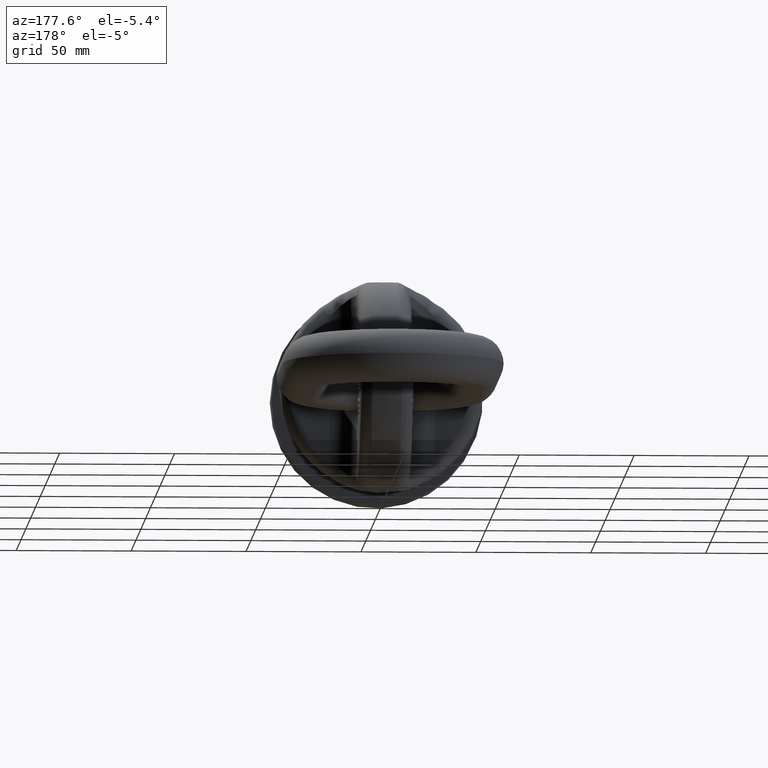
[diagram: clean part render]
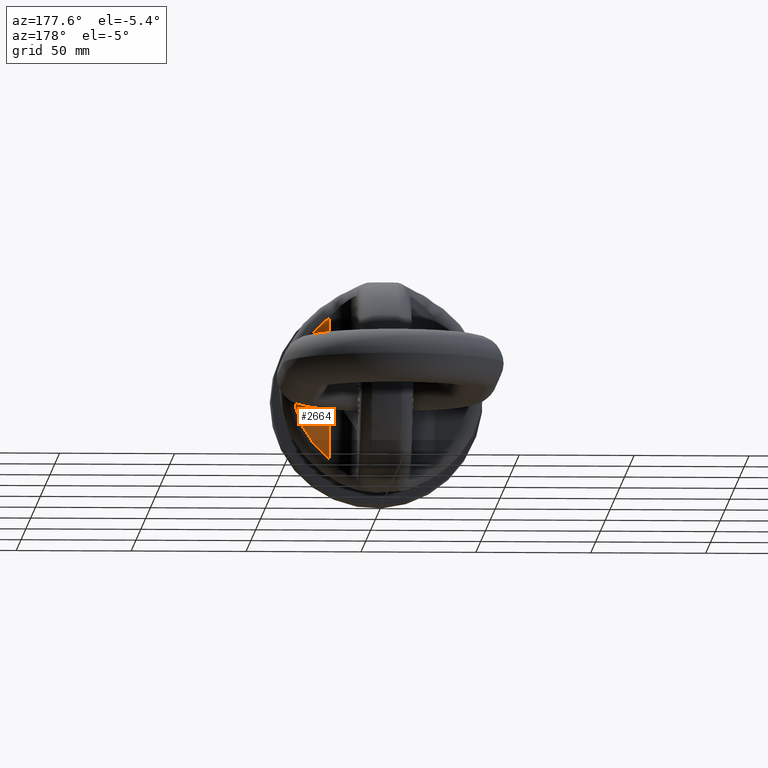
[diagram: same view with one face highlighted and labeled with its STEP entity id]
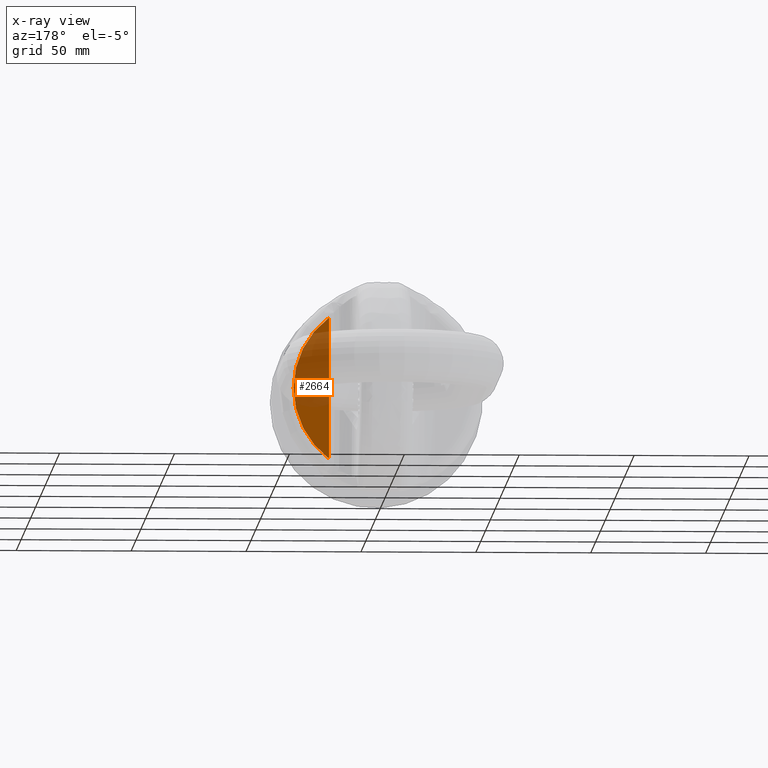
[diagram: x-ray of the same camera — body ghosted, the highlighted face saturated]
A machine part, auxiliary view. The second image highlights one B-rep face of the part: STEP entity #2664.
The next image is the same camera in x-ray: the body ghosted, the highlighted face saturated — about 64% of this face is hidden behind the body in this view.
In plain terms, the highlighted planar face has unit normal (0, 1, 0).
Its self-contained STEP definition (entity closure, byte-faithful):
#1816=FACE_OUTER_BOUND('',#3100,.T.);
#2091=LINE('',#6961,#2347);
#2092=LINE('',#6992,#2348);
#2347=VECTOR('',#5953,1.);
#2348=VECTOR('',#5956,1.);
#2664=ADVANCED_FACE('',(#1816),#2892,.T.);
#2892=PLANE('',#5655);
#3100=EDGE_LOOP('',(#3531,#3532,#3533));
#3531=ORIENTED_EDGE('',*,*,#5050,.T.);
#3532=ORIENTED_EDGE('',*,*,#5073,.T.);
#3533=ORIENTED_EDGE('',*,*,#5055,.T.);
#4640=VERTEX_POINT('',#6962);
#4641=VERTEX_POINT('',#6963);
#4643=VERTEX_POINT('',#6993);
#5050=EDGE_CURVE('',#4640,#4641,#2091,.T.);
#5055=EDGE_CURVE('',#4643,#4640,#2092,.T.);
#5073=EDGE_CURVE('',#4641,#4643,#5560,.T.);
#5560=CIRCLE('',#5654,38.4783627265517);
#5654=AXIS2_PLACEMENT_3D('',#7069,#5979,#5980);
#5655=AXIS2_PLACEMENT_3D('',#7070,#5981,#5982);
#5953=DIRECTION('',(0.,0.,1.));
#5956=DIRECTION('',(0.,0.,1.));
#5979=DIRECTION('',(0.,1.,0.));
#5980=DIRECTION('',(0.,0.,1.));
#5981=DIRECTION('',(0.,1.,0.));
#5982=DIRECTION('',(0.,0.,1.));
#6961=CARTESIAN_POINT('',(23.,69.,44.2577676798096));
#6962=CARTESIAN_POINT('',(23.,69.,0.));
#6963=CARTESIAN_POINT('',(23.,69.,30.8477616386681));
#6992=CARTESIAN_POINT('',(23.,69.,44.2577676798096));
#6993=CARTESIAN_POINT('',(23.,69.,-30.8477616386681));
#7069=CARTESIAN_POINT('',(0.,69.,0.));
#7070=CARTESIAN_POINT('',(11.5,69.,50.6));